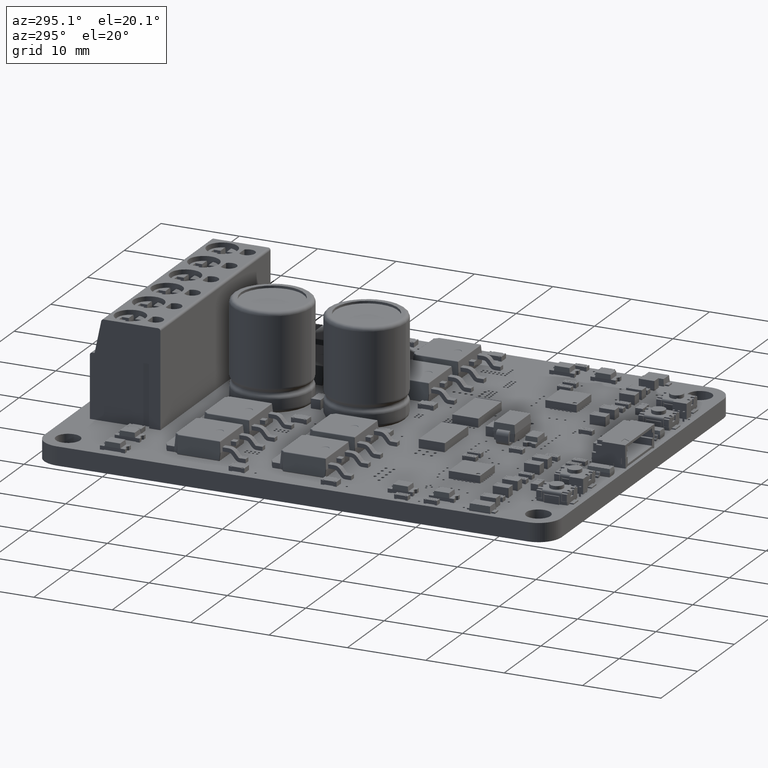
[diagram: clean part render]
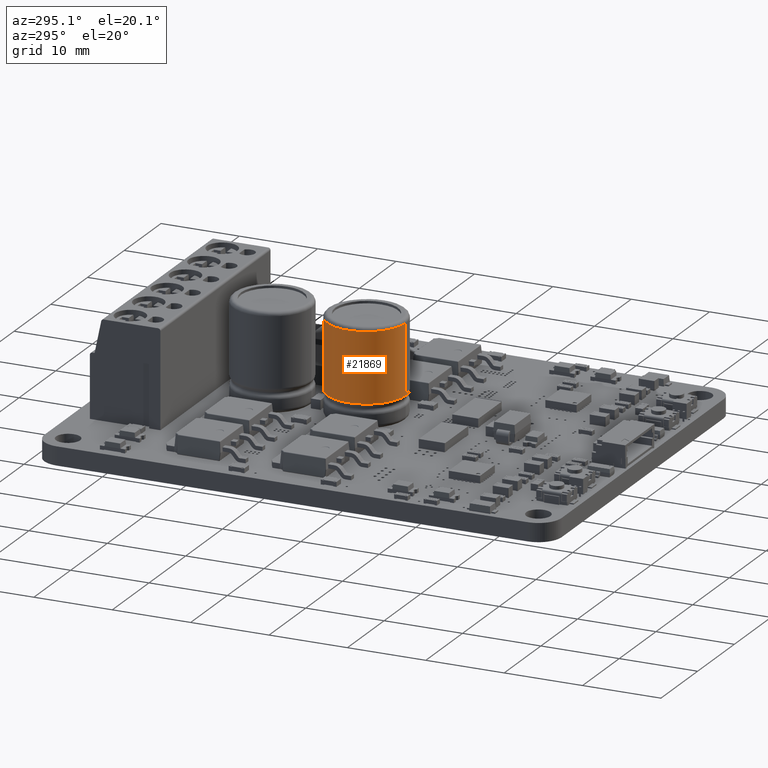
[diagram: same view with one face highlighted and labeled with its STEP entity id]
A machine part, auxiliary view. The second image highlights one B-rep face of the part: STEP entity #21869.
In plain terms, the highlighted cylindrical surface (partial cylindrical patch) has radius 5 mm, axis along (0, 0, -1).
Its self-contained STEP definition (entity closure, byte-faithful):
#21773 = VERTEX_POINT('',#21774);
#21774 = CARTESIAN_POINT('',(6.123233995737E-16,12.,5.));
#21818 = VERTEX_POINT('',#21819);
#21819 = CARTESIAN_POINT('',(0.,12.,-5.));
#21826 = EDGE_CURVE('',#21773,#21818,#21827,.T.);
#21827 = CIRCLE('',#21828,5.);
#21828 = AXIS2_PLACEMENT_3D('',#21829,#21830,#21831);
#21829 = CARTESIAN_POINT('',(0.,12.,0.));
#21830 = DIRECTION('',(0.,-1.,0.));
#21831 = DIRECTION('',(0.,0.,-1.));
#21842 = EDGE_CURVE('',#21773,#21843,#21845,.T.);
#21843 = VERTEX_POINT('',#21844);
#21844 = CARTESIAN_POINT('',(6.123233995737E-16,3.094450529658,5.));
#21845 = LINE('',#21846,#21847);
#21846 = CARTESIAN_POINT('',(6.123233995737E-16,0.,5.));
#21847 = VECTOR('',#21848,1.);
#21848 = DIRECTION('',(0.,-1.,0.));
#21869 = ADVANCED_FACE('',(#21870),#21889,.T.);
#21870 = FACE_BOUND('',#21871,.T.);
#21871 = EDGE_LOOP('',(#21872,#21873,#21874,#21882));
#21872 = ORIENTED_EDGE('',*,*,#21842,.F.);
#21873 = ORIENTED_EDGE('',*,*,#21826,.T.);
#21874 = ORIENTED_EDGE('',*,*,#21875,.T.);
#21875 = EDGE_CURVE('',#21818,#21876,#21878,.T.);
#21876 = VERTEX_POINT('',#21877);
#21877 = CARTESIAN_POINT('',(0.,3.094450529658,-5.));
#21878 = LINE('',#21879,#21880);
#21879 = CARTESIAN_POINT('',(0.,0.,-5.));
#21880 = VECTOR('',#21881,1.);
#21881 = DIRECTION('',(0.,-1.,0.));
#21882 = ORIENTED_EDGE('',*,*,#21883,.F.);
#21883 = EDGE_CURVE('',#21843,#21876,#21884,.T.);
#21884 = CIRCLE('',#21885,5.);
#21885 = AXIS2_PLACEMENT_3D('',#21886,#21887,#21888);
#21886 = CARTESIAN_POINT('',(0.,3.094450529658,0.));
#21887 = DIRECTION('',(0.,-1.,0.));
#21888 = DIRECTION('',(0.,0.,-1.));
#21889 = CYLINDRICAL_SURFACE('',#21890,5.);
#21890 = AXIS2_PLACEMENT_3D('',#21891,#21892,#21893);
#21891 = CARTESIAN_POINT('',(0.,0.,0.));
#21892 = DIRECTION('',(0.,-1.,0.));
#21893 = DIRECTION('',(0.,0.,-1.));